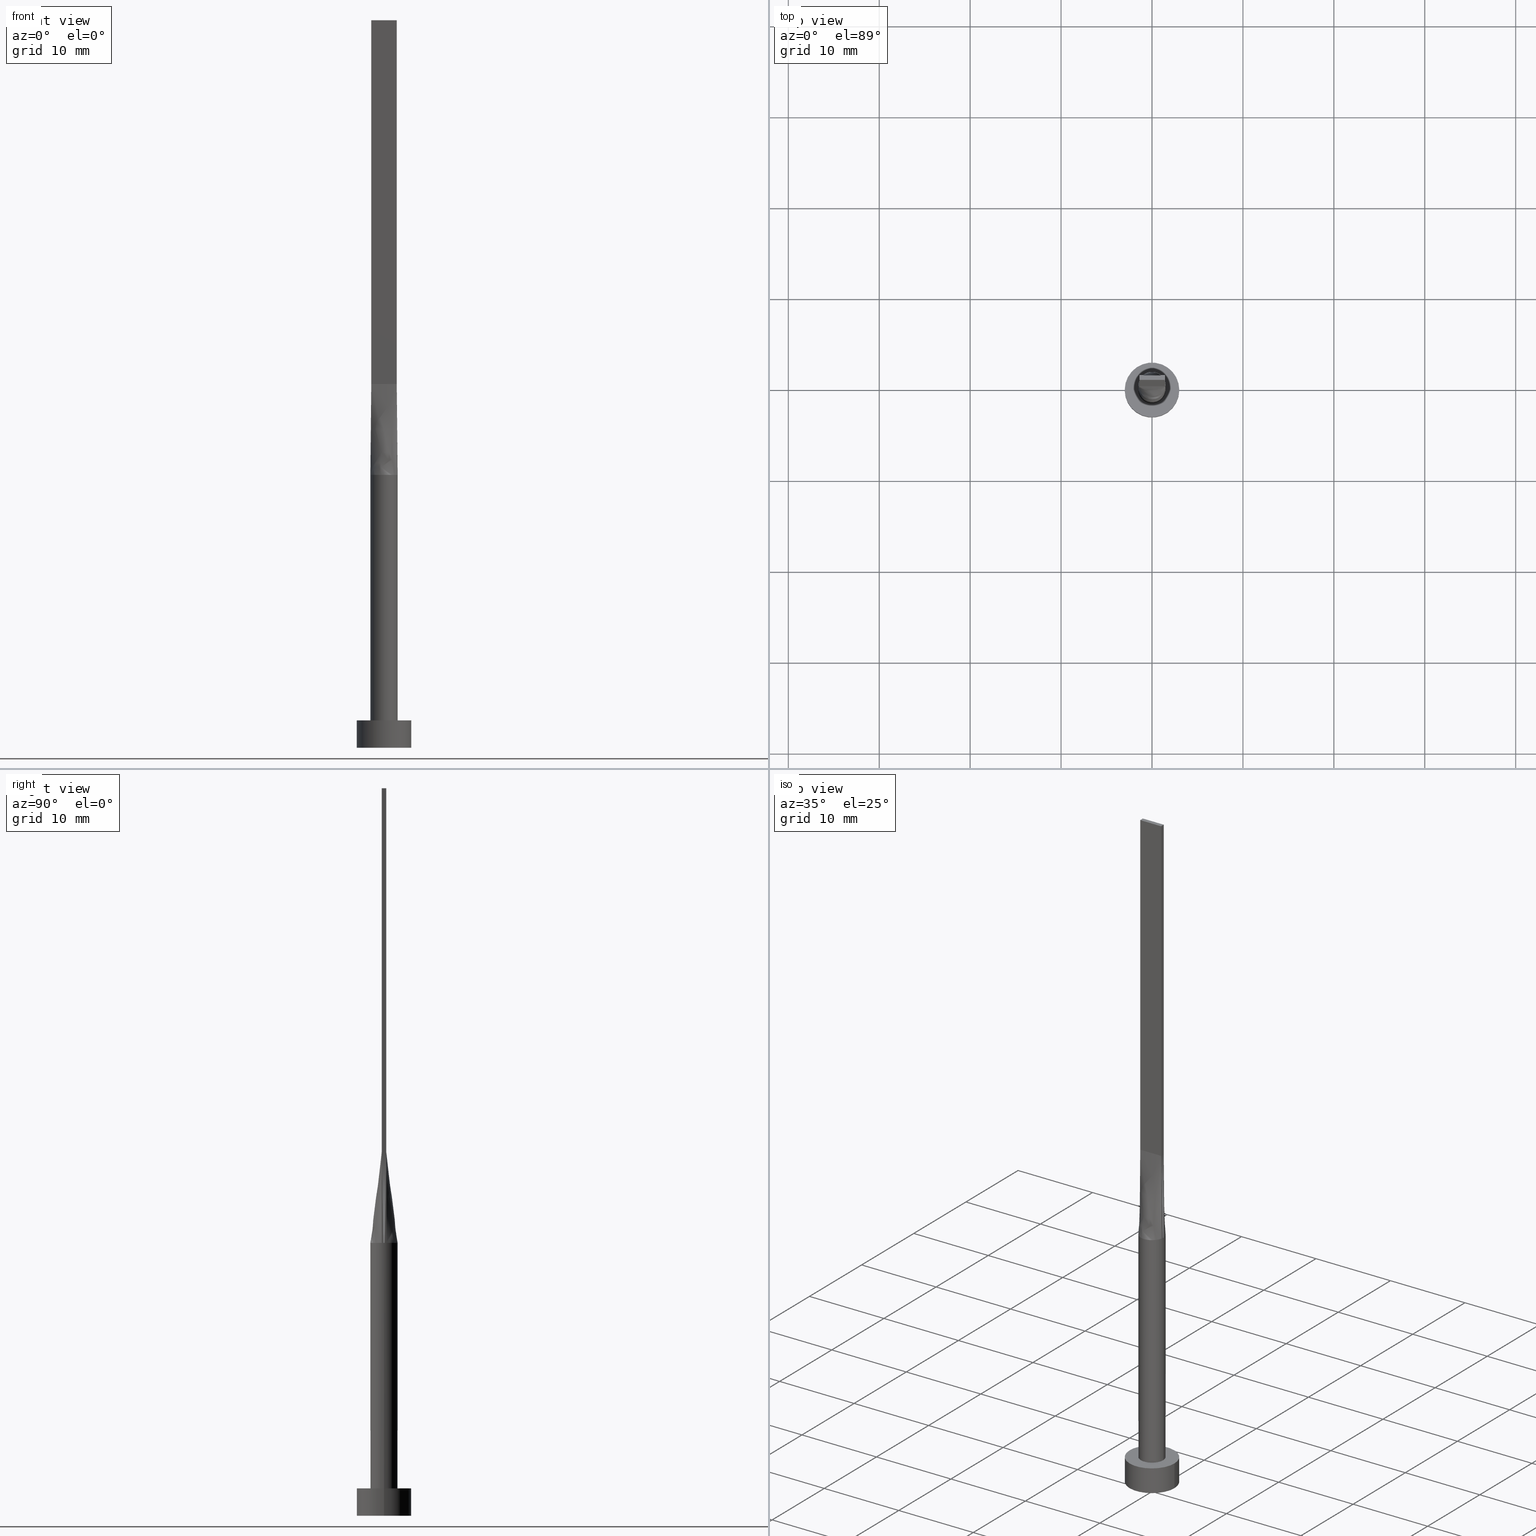
[diagram: canonical four-view strip — front | top / right | iso, engineering-drawing reading convention]
A machine part, canonical four-view strip (front | top / right | iso — engineering-drawing reading convention). The complete STEP part file that produces these views, byte-faithful:
ISO-10303-21;
HEADER;
FILE_DESCRIPTION (( 'STEP AP203' ),
    '1' );
FILE_NAME ('a864.STEP',
    '2026-02-12T09:01:34',
    ( '' ),
    ( '' ),
    'SwSTEP 2.0',
    'SolidWorks 2019',
    '' );
FILE_SCHEMA (( 'CONFIG_CONTROL_DESIGN' ));
ENDSEC;

DATA;
#1 = EDGE_LOOP ( 'NONE', ( #556, #74 ) ) ;
#2 = LINE ( 'NONE', #135, #396 ) ;
#3 = CARTESIAN_POINT ( 'NONE',  ( -0.1166666666666663910, 0.2500000000000002220, 39.99999999999999289 ) ) ;
#4 = CARTESIAN_POINT ( 'NONE',  ( -0.2093118330951414807, -1.500000000000000666, 30.00000000000000355 ) ) ;
#5 = DIRECTION ( 'NONE',  ( 1.000000000000000000, 0.000000000000000000, -0.000000000000000000 ) ) ;
#6 = CARTESIAN_POINT ( 'NONE',  ( -0.4178861784692550208, 1.454504042781961326, 30.00000000000000355 ) ) ;
#7 = CARTESIAN_POINT ( 'NONE',  ( -0.4666666666666662300, 0.2500000000000002220, 39.99999999999999289 ) ) ;
#8 = APPROVAL_PERSON_ORGANIZATION ( #536, #63, #30 ) ;
#9 = ORIENTED_EDGE ( 'NONE', *, *, #357, .T. ) ;
#10 = ORIENTED_EDGE ( 'NONE', *, *, #42, .T. ) ;
#11 = ORIENTED_EDGE ( 'NONE', *, *, #512, .F. ) ;
#12 = EDGE_LOOP ( 'NONE', ( #390, #106, #248, #557 ) ) ;
#13 = VECTOR ( 'NONE', #484, 1000.000000000000000 ) ;
#14 = ORIENTED_EDGE ( 'NONE', *, *, #417, .F. ) ;
#15 = EDGE_CURVE ( 'NONE', #156, #159, #186, .T. ) ;
#16 = CARTESIAN_POINT ( 'NONE',  ( -1.193588737715979731, -0.9257784320005619794, 30.00000000000000355 ) ) ;
#17 = PLANE ( 'NONE',  #224 ) ;
#18 = CYLINDRICAL_SURFACE ( 'NONE', #58, 1.500000000000000222 ) ;
#19 = CARTESIAN_POINT ( 'NONE',  ( -0.4666666666666677288, -0.2499999999999996669, 39.99999999999999289 ) ) ;
#20 = FACE_OUTER_BOUND ( 'NONE', #164, .T. ) ;
#21 = APPROVAL ( #486, 'NEUR�EN�' ) ;
#22 = LINE ( 'NONE', #518, #497 ) ;
#23 = VECTOR ( 'NONE', #240, 1000.000000000000000 ) ;
#24 = ORIENTED_EDGE ( 'NONE', *, *, #49, .F. ) ;
#25 = CARTESIAN_POINT ( 'NONE',  ( 1.476789766994309527, -0.2637122300648489515, 30.00000000000000000 ) ) ;
#26 = PLANE ( 'NONE',  #150 ) ;
#27 = CARTESIAN_POINT ( 'NONE',  ( -0.7852726932053994968, -1.293660568283136136, 30.00000000000000711 ) ) ;
#28 = CARTESIAN_POINT ( 'NONE',  ( 1.399999999999999911, -0.1666666666666664909, 39.99999999999999289 ) ) ;
#29 = CARTESIAN_POINT ( 'NONE',  ( 0.000000000000000000, 0.000000000000000000, 30.00000000000000000 ) ) ;
#30 = APPROVAL_ROLE ( '' ) ;
#31 = DIRECTION ( 'NONE',  ( 0.000000000000000000, 0.000000000000000000, 1.000000000000000000 ) ) ;
#32 = CIRCLE ( 'NONE', #375, 1.500000000000000222 ) ;
#33 = EDGE_CURVE ( 'NONE', #568, #59, #467, .T. ) ;
#34 = PERSON_AND_ORGANIZATION_ROLE ( 'creator' ) ;
#35 = EDGE_CURVE ( 'NONE', #153, #156, #526, .T. ) ;
#36 = DIRECTION ( 'NONE',  ( 0.000000000000000000, 0.000000000000000000, 1.000000000000000000 ) ) ;
#37 = CARTESIAN_POINT ( 'NONE',  ( -1.399999999999999911, 0.2500000000000002220, 40.00000000000000000 ) ) ;
#38 = CALENDAR_DATE ( 2026, 12, 2 ) ;
#39 = CARTESIAN_POINT ( 'NONE',  ( 0.000000000000000000, 0.000000000000000000, 3.000000000000000000 ) ) ;
#40 = DIRECTION ( 'NONE',  ( -1.000000000000000000, 0.000000000000000000, 0.000000000000000000 ) ) ;
#41 = ORIENTED_EDGE ( 'NONE', *, *, #46, .T. ) ;
#42 = EDGE_CURVE ( 'NONE', #307, #102, #297, .T. ) ;
#43 = PERSON_AND_ORGANIZATION ( #154, #195 ) ;
#44 = DIRECTION ( 'NONE',  ( 1.000000000000000000, 0.000000000000000000, 0.000000000000000000 ) ) ;
#45 = CARTESIAN_POINT ( 'NONE',  ( 0.4178861784692547432, 1.454504042781961770, 30.00000000000001421 ) ) ;
#46 = EDGE_CURVE ( 'NONE', #159, #465, #453, .T. ) ;
#47 = CARTESIAN_POINT ( 'NONE',  ( -0.2333333333333344750, -0.2499999999999996669, 39.99999999999999289 ) ) ;
#48 = PRODUCT_DEFINITION_FORMATION_WITH_SPECIFIED_SOURCE ( 'LIBOVOLN�', '', #214, .NOT_KNOWN. ) ;
#49 = EDGE_CURVE ( 'NONE', #548, #464, #433, .T. ) ;
#50 = CARTESIAN_POINT ( 'NONE',  ( -1.399999999999999911, 0.2500000000000002220, 40.00000000000000000 ) ) ;
#51 = CARTESIAN_POINT ( 'NONE',  ( 0.000000000000000000, 0.000000000000000000, 0.000000000000000000 ) ) ;
#52 = CARTESIAN_POINT ( 'NONE',  ( 0.7852726932053988307, 1.293660568283136358, 30.00000000000000711 ) ) ;
#53 = CARTESIAN_POINT ( 'NONE',  ( -0.7852726932053990527, 1.293660568283136136, 30.00000000000000355 ) ) ;
#54 = CARTESIAN_POINT ( 'NONE',  ( 1.416287091352355532, -0.5163978007200231701, 30.00000000000001066 ) ) ;
#55 = VERTEX_POINT ( 'NONE', #212 ) ;
#56 = ADVANCED_FACE ( 'NONE', ( #348 ), #208, .T. ) ;
#57 = CC_DESIGN_PERSON_AND_ORGANIZATION_ASSIGNMENT ( #448, #34, ( #70 ) ) ;
#58 = AXIS2_PLACEMENT_3D ( 'NONE', #434, #79, #266 ) ;
#59 = VERTEX_POINT ( 'NONE', #410 ) ;
#60 = APPLICATION_CONTEXT ( 'configuration controlled 3d designs of mechanical parts and assemblies' ) ;
#61 = ORIENTED_EDGE ( 'NONE', *, *, #355, .F. ) ;
#62 = VERTEX_POINT ( 'NONE', #329 ) ;
#63 = APPROVAL ( #444, 'NEUR�EN�' ) ;
#64 = ORIENTED_EDGE ( 'NONE', *, *, #216, .F. ) ;
#65 = CARTESIAN_POINT ( 'NONE',  ( 1.476641363262723106, -0.2636859577254868081, 30.00000000000000000 ) ) ;
#66 = VECTOR ( 'NONE', #178, 1000.000000000000000 ) ;
#67 = CARTESIAN_POINT ( 'NONE',  ( 0.000000000000000000, 0.000000000000000000, 3.000000000000000000 ) ) ;
#68 = CARTESIAN_POINT ( 'NONE',  ( 1.399999999999999911, -0.2499999999999997780, 40.00000000000000000 ) ) ;
#69 = CARTESIAN_POINT ( 'NONE',  ( 1.399999999999999911, 0.2500000000000002220, 80.00000000000000000 ) ) ;
#70 = PRODUCT_DEFINITION ( 'NEZN�M�', '', #48, #124 ) ;
#71 = DIRECTION ( 'NONE',  ( -0.007663904067361702183, -0.001368554297743126936, -0.9999696953576046043 ) ) ;
#72 = LINE ( 'NONE', #431, #237 ) ;
#73 = B_SPLINE_SURFACE_WITH_KNOTS ( 'NONE', 3, 1, ( 
 ( #65, #68 ),
 ( #517, #28 ),
 ( #111, #115 ),
 ( #213, #476 ),
 ( #121, #352 ),
 ( #298, #470 ) ),
 .UNSPECIFIED., .F., .F., .F.,
 ( 4, 2, 4 ),
 ( 2, 2 ),
 ( 0.000000000000000000, 0.5000000000000000000, 1.000000000000000000 ),
 ( 0.000000000000000000, 1.000000000000000000 ),
 .UNSPECIFIED. ) ;
#74 = ORIENTED_EDGE ( 'NONE', *, *, #417, .T. ) ;
#75 = DIRECTION ( 'NONE',  ( -0.007663904067361680499, 0.001368554297743197626, 0.9999696953576046043 ) ) ;
#76 = CIRCLE ( 'NONE', #222, 3.000000000000000444 ) ;
#77 = ORIENTED_EDGE ( 'NONE', *, *, #205, .F. ) ;
#78 = CARTESIAN_POINT ( 'NONE',  ( -1.492092537551969578, 0.1771593817057086351, 30.00000000000000000 ) ) ;
#79 = DIRECTION ( 'NONE',  ( -0.000000000000000000, -0.000000000000000000, -1.000000000000000000 ) ) ;
#80 = PERSON_AND_ORGANIZATION ( #154, #195 ) ;
#81 = LINE ( 'NONE', #575, #174 ) ;
#82 = EDGE_CURVE ( 'NONE', #384, #153, #158, .T. ) ;
#83 = DATE_AND_TIME ( #399, #463 ) ;
#84 = DIRECTION ( 'NONE',  ( 0.000000000000000000, 0.000000000000000000, 1.000000000000000000 ) ) ;
#85 = APPROVAL_ROLE ( '' ) ;
#86 = CARTESIAN_POINT ( 'NONE',  ( -1.399999999999999911, 0.2500000000000002220, 80.00000000000000000 ) ) ;
#87 = EDGE_CURVE ( 'NONE', #376, #469, #371, .T. ) ;
#88 = FACE_OUTER_BOUND ( 'NONE', #451, .T. ) ;
#89 = ORIENTED_EDGE ( 'NONE', *, *, #163, .T. ) ;
#90 = CALENDAR_DATE ( 2026, 12, 2 ) ;
#91 = LINE ( 'NONE', #280, #432 ) ;
#92 = CARTESIAN_POINT ( 'NONE',  ( -1.455009719257779111, 0.3848231641531745795, 30.00000000000000000 ) ) ;
#93 = CARTESIAN_POINT ( 'NONE',  ( 0.2093118330951404815, -1.500000000000000444, 29.99999999999999645 ) ) ;
#94 = CARTESIAN_POINT ( 'NONE',  ( 0.000000000000000000, 0.000000000000000000, 30.00000000000000000 ) ) ;
#95 = CARTESIAN_POINT ( 'NONE',  ( -1.476641363262723328, 0.2636859577254856424, 30.00000000000000000 ) ) ;
#96 = EDGE_CURVE ( 'NONE', #345, #550, #76, .T. ) ;
#97 = CARTESIAN_POINT ( 'NONE',  ( 1.455009719257778888, -0.3848231641531754121, 30.00000000000000355 ) ) ;
#98 = CARTESIAN_POINT ( 'NONE',  ( -1.285860877433235183, 0.7868275653575075301, 30.00000000000000000 ) ) ;
#99 = CARTESIAN_POINT ( 'NONE',  ( 0.2093118330951408979, 1.500000000000000666, 30.00000000000000355 ) ) ;
#100 = CARTESIAN_POINT ( 'NONE',  ( -1.476774769252511055, 0.2637095436881764510, 30.00000000000000000 ) ) ;
#101 = PRODUCT_RELATED_PRODUCT_CATEGORY ( 'detail', '', ( #214 ) ) ;
#102 = VERTEX_POINT ( 'NONE', #488 ) ;
#103 = EDGE_CURVE ( 'NONE', #548, #376, #317, .T. ) ;
#104 = AXIS2_PLACEMENT_3D ( 'NONE', #170, #350, #211 ) ;
#105 = LOCAL_TIME ( 10, 1, 34.00000000000000000, #271 ) ;
#106 = ORIENTED_EDGE ( 'NONE', *, *, #272, .F. ) ;
#107 = ADVANCED_FACE ( 'NONE', ( #140 ), #142, .T. ) ;
#108 = EDGE_LOOP ( 'NONE', ( #562, #508, #571, #290 ) ) ;
#109 = ORIENTED_EDGE ( 'NONE', *, *, #193, .F. ) ;
#110 = DIRECTION ( 'NONE',  ( 0.000000000000000000, 0.000000000000000000, 1.000000000000000000 ) ) ;
#111 = CARTESIAN_POINT ( 'NONE',  ( 1.499818124696592481, -0.08857969085285472000, 30.00000000000000000 ) ) ;
#112 = VECTOR ( 'NONE', #455, 999.9999999999998863 ) ;
#113 = DIRECTION ( 'NONE',  ( -0.000000000000000000, -0.000000000000000000, -1.000000000000000000 ) ) ;
#114 = CARTESIAN_POINT ( 'NONE',  ( -0.8166666666666674290, -0.2499999999999996669, 39.99999999999999289 ) ) ;
#115 = CARTESIAN_POINT ( 'NONE',  ( 1.399999999999999911, -0.08333333333333318993, 39.99999999999999289 ) ) ;
#116 = FACE_OUTER_BOUND ( 'NONE', #108, .T. ) ;
#117 = ORIENTED_EDGE ( 'NONE', *, *, #335, .F. ) ;
#118 = DIRECTION ( 'NONE',  ( 1.000000000000000000, 0.000000000000000000, 0.000000000000000000 ) ) ;
#119 = DIRECTION ( 'NONE',  ( 1.000000000000000000, 0.000000000000000000, 0.000000000000000000 ) ) ;
#120 = CARTESIAN_POINT ( 'NONE',  ( -1.285860877433235405, -0.7868275653575071971, 30.00000000000001066 ) ) ;
#121 = CARTESIAN_POINT ( 'NONE',  ( 1.492092537551969578, 0.1771593817057089126, 30.00000000000000000 ) ) ;
#122 = VECTOR ( 'NONE', #406, 1000.000000000000000 ) ;
#123 = CARTESIAN_POINT ( 'NONE',  ( 1.399999999999999911, 0.2500000000000002220, 80.00000000000000000 ) ) ;
#124 = DESIGN_CONTEXT ( 'detailed design', #60, 'design' ) ;
#125 = APPROVAL_DATE_TIME ( #127, #242 ) ;
#126 = DIRECTION ( 'NONE',  ( 0.000000000000000000, -0.000000000000000000, -1.000000000000000000 ) ) ;
#127 = DATE_AND_TIME ( #438, #514 ) ;
#128 = CARTESIAN_POINT ( 'NONE',  ( -1.476780214353118348, -0.2637106662004926605, 30.00000000000000000 ) ) ;
#129 = APPROVAL_DATE_TIME ( #268, #63 ) ;
#130 = DIRECTION ( 'NONE',  ( 1.000000000000000000, 0.000000000000000000, 0.000000000000000000 ) ) ;
#131 = CARTESIAN_POINT ( 'NONE',  ( -0.5833333333333328152, 0.2500000000000002220, 39.99999999999999289 ) ) ;
#132 = ADVANCED_FACE ( 'NONE', ( #88 ), #519, .T. ) ;
#133 = CARTESIAN_POINT ( 'NONE',  ( -1.283333333333333437, -0.2499999999999996669, 39.99999999999999289 ) ) ;
#134 = PERSON_AND_ORGANIZATION ( #154, #195 ) ;
#135 = CARTESIAN_POINT ( 'NONE',  ( -1.399999999999999911, 0.2500000000000002220, 80.00000000000000000 ) ) ;
#136 = CARTESIAN_POINT ( 'NONE',  ( 0.9436169880431070078, 1.179536671679307869, 30.00000000000000000 ) ) ;
#137 = ORIENTED_EDGE ( 'NONE', *, *, #15, .F. ) ;
#138 = CARTESIAN_POINT ( 'NONE',  ( -0.1166666666666678343, -0.2499999999999996669, 40.00000000000000000 ) ) ;
#139 = CARTESIAN_POINT ( 'NONE',  ( 0.000000000000000000, 0.000000000000000000, 0.000000000000000000 ) ) ;
#140 = FACE_OUTER_BOUND ( 'NONE', #287, .T. ) ;
#141 = CARTESIAN_POINT ( 'NONE',  ( 1.283333333333333437, -0.2499999999999997780, 39.99999999999999289 ) ) ;
#142 = CYLINDRICAL_SURFACE ( 'NONE', #236, 3.000000000000000444 ) ;
#143 = VECTOR ( 'NONE', #180, 1000.000000000000000 ) ;
#144 = CARTESIAN_POINT ( 'NONE',  ( 1.285860877433235405, 0.7868275653575075301, 30.00000000000000711 ) ) ;
#145 = CIRCLE ( 'NONE', #468, 3.000000000000000444 ) ;
#146 = CARTESIAN_POINT ( 'NONE',  ( 0.4666666666666673402, 0.2500000000000002220, 39.99999999999999289 ) ) ;
#147 = ADVANCED_FACE ( 'NONE', ( #183 ), #446, .F. ) ;
#148 = ORIENTED_EDGE ( 'NONE', *, *, #555, .T. ) ;
#149 = ORIENTED_EDGE ( 'NONE', *, *, #515, .T. ) ;
#150 = AXIS2_PLACEMENT_3D ( 'NONE', #527, #560, #126 ) ;
#151 = CIRCLE ( 'NONE', #250, 1.500000000000000222 ) ;
#152 = EDGE_LOOP ( 'NONE', ( #149, #249, #303, #89 ) ) ;
#153 = VERTEX_POINT ( 'NONE', #471 ) ;
#154 = PERSON ( 'NEUR�EN�', 'NEUR�EN�', 'NEUR�EN�', ('NEUR�EN�'), ('NEUR�EN�'), ('NEUR�EN�') ) ;
#155 = ADVANCED_FACE ( 'NONE', ( #207, #427 ), #215, .T. ) ;
#156 = VERTEX_POINT ( 'NONE', #301 ) ;
#157 = CARTESIAN_POINT ( 'NONE',  ( -3.000000000000000444, 0.000000000000000000, 0.000000000000000000 ) ) ;
#158 = B_SPLINE_CURVE_WITH_KNOTS ( 'NONE', 3,
 ( #283, #500, #545, #144, #326, #457, #52, #243, #99, #413, #6, #227, #414, #327, #98, #284, #92, #100 ),
 .UNSPECIFIED., .F., .F.,
 ( 4, 2, 2, 2, 2, 2, 2, 2, 4 ),
 ( 0.000000000000000000, 0.1249999999999999167, 0.2499999999999998335, 0.3749999999999998335, 0.4999999999999998890, 0.6249999999999998890, 0.7499999999999998890, 0.8750000000000000000, 1.000000000000000000 ),
 .UNSPECIFIED. ) ;
#159 = VERTEX_POINT ( 'NONE', #176 ) ;
#160 = CARTESIAN_POINT ( 'NONE',  ( -1.476641363262723328, -0.2636859577254855869, 30.00000000000000000 ) ) ;
#161 =( GEOMETRIC_REPRESENTATION_CONTEXT ( 3 ) GLOBAL_UNCERTAINTY_ASSIGNED_CONTEXT ( ( #559 ) ) GLOBAL_UNIT_ASSIGNED_CONTEXT ( ( #567, #293, #259 ) ) REPRESENTATION_CONTEXT ( 'NONE', 'WORKASPACE' ) );
#162 = DIRECTION ( 'NONE',  ( 0.000000000000000000, 0.000000000000000000, 1.000000000000000000 ) ) ;
#163 = EDGE_CURVE ( 'NONE', #258, #469, #392, .T. ) ;
#164 = EDGE_LOOP ( 'NONE', ( #505, #461, #24, #198, #61 ) ) ;
#165 = FACE_OUTER_BOUND ( 'NONE', #152, .T. ) ;
#166 = ADVANCED_FACE ( 'NONE', ( #165 ), #26, .F. ) ;
#167 = DIRECTION ( 'NONE',  ( 1.000000000000000000, 0.000000000000000000, 0.000000000000000000 ) ) ;
#168 = CARTESIAN_POINT ( 'NONE',  ( -1.399999999999999911, 0.2500000000000002220, 40.00000000000000000 ) ) ;
#169 = ORIENTED_EDGE ( 'NONE', *, *, #263, .F. ) ;
#170 = CARTESIAN_POINT ( 'NONE',  ( -1.399999999999999911, -0.2499999999999996392, 80.00000000000000000 ) ) ;
#171 = ADVANCED_FACE ( 'NONE', ( #569 ), #389, .F. ) ;
#172 = DIRECTION ( 'NONE',  ( 1.000000000000000000, 0.000000000000000000, -0.000000000000000000 ) ) ;
#173 = DIRECTION ( 'NONE',  ( -0.000000000000000000, -0.000000000000000000, -1.000000000000000000 ) ) ;
#174 = VECTOR ( 'NONE', #173, 1000.000000000000000 ) ;
#175 = APPROVAL_ROLE ( '' ) ;
#176 = CARTESIAN_POINT ( 'NONE',  ( -1.500000000000000222, 0.000000000000000000, 3.000000000000000000 ) ) ;
#177 = DATE_TIME_ROLE ( 'creation_date' ) ;
#178 = DIRECTION ( 'NONE',  ( -0.000000000000000000, -0.000000000000000000, -1.000000000000000000 ) ) ;
#179 = CARTESIAN_POINT ( 'NONE',  ( 0.8166666666666673180, 0.2500000000000002220, 39.99999999999999289 ) ) ;
#180 = DIRECTION ( 'NONE',  ( 1.000000000000000000, -5.808225924029488744E-17, 0.000000000000000000 ) ) ;
#181 = PERSON_AND_ORGANIZATION_ROLE ( 'design_owner' ) ;
#182 = DIRECTION ( 'NONE',  ( 0.000000000000000000, 0.000000000000000000, 1.000000000000000000 ) ) ;
#183 = FACE_OUTER_BOUND ( 'NONE', #331, .T. ) ;
#184 = VECTOR ( 'NONE', #257, 1000.000000000000000 ) ;
#185 = CC_DESIGN_APPROVAL ( #21, ( #351 ) ) ;
#186 = LINE ( 'NONE', #319, #122 ) ;
#187 = DIRECTION ( 'NONE',  ( 1.000000000000000000, 0.000000000000000000, 0.000000000000000000 ) ) ;
#188 = CARTESIAN_POINT ( 'NONE',  ( -0.9436169880431073409, 1.179536671679307647, 30.00000000000000000 ) ) ;
#189 = CARTESIAN_POINT ( 'NONE',  ( 0.2333333333333322268, -0.2499999999999996669, 39.99999999999999289 ) ) ;
#190 = CARTESIAN_POINT ( 'NONE',  ( -1.166666666666666519, 0.2500000000000002220, 39.99999999999999289 ) ) ;
#191 = CARTESIAN_POINT ( 'NONE',  ( 0.1166666666666655305, -0.2499999999999996669, 39.99999999999999289 ) ) ;
#192 = CARTESIAN_POINT ( 'NONE',  ( 1.416287091352355976, 0.5163978007200227260, 30.00000000000000000 ) ) ;
#193 = EDGE_CURVE ( 'NONE', #464, #568, #282, .T. ) ;
#194 = AXIS2_PLACEMENT_3D ( 'NONE', #474, #31, #309 ) ;
#195 = ORGANIZATION ( 'NEUR�EN�', 'NEUR�EN�', '' ) ;
#196 = EDGE_LOOP ( 'NONE', ( #245, #292, #109, #473, #551, #41 ) ) ;
#197 = ORIENTED_EDGE ( 'NONE', *, *, #82, .F. ) ;
#198 = ORIENTED_EDGE ( 'NONE', *, *, #302, .F. ) ;
#199 = ORIENTED_EDGE ( 'NONE', *, *, #335, .T. ) ;
#200 = APPROVAL_PERSON_ORGANIZATION ( #80, #242, #175 ) ;
#201 = ORIENTED_EDGE ( 'NONE', *, *, #355, .T. ) ;
#202 = ORIENTED_EDGE ( 'NONE', *, *, #515, .F. ) ;
#203 = CARTESIAN_POINT ( 'NONE',  ( -1.399999999999999911, -0.08333333333333345361, 39.99999999999999289 ) ) ;
#204 = EDGE_CURVE ( 'NONE', #102, #376, #347, .T. ) ;
#205 = EDGE_CURVE ( 'NONE', #59, #384, #32, .T. ) ;
#206 = ORIENTED_EDGE ( 'NONE', *, *, #216, .T. ) ;
#207 = FACE_BOUND ( 'NONE', #337, .T. ) ;
#208 = B_SPLINE_SURFACE_WITH_KNOTS ( 'NONE', 3, 1, ( 
 ( #533, #480 ),
 ( #425, #133 ),
 ( #435, #523 ),
 ( #120, #255 ),
 ( #16, #114 ),
 ( #428, #264 ),
 ( #27, #19 ),
 ( #210, #47 ),
 ( #4, #138 ),
 ( #93, #191 ),
 ( #370, #189 ),
 ( #323, #373 ),
 ( #496, #239 ),
 ( #285, #459 ),
 ( #279, #542 ),
 ( #54, #539 ),
 ( #97, #141 ),
 ( #493, #452 ) ),
 .UNSPECIFIED., .F., .F., .F.,
 ( 4, 2, 2, 2, 2, 2, 2, 2, 4 ),
 ( 2, 2 ),
 ( 0.000000000000000000, 0.1250000000000000000, 0.2500000000000000000, 0.3750000000000000000, 0.5000000000000000000, 0.6250000000000000000, 0.7500000000000000000, 0.8750000000000000000, 1.000000000000000000 ),
 ( 0.000000000000000000, 1.000000000000000000 ),
 .UNSPECIFIED. ) ;
#209 = AXIS2_PLACEMENT_3D ( 'NONE', #386, #305, #573 ) ;
#210 = CARTESIAN_POINT ( 'NONE',  ( -0.4178861784692555759, -1.454504042781961548, 30.00000000000000355 ) ) ;
#211 = DIRECTION ( 'NONE',  ( -1.000000000000000000, 5.808225924029488744E-17, 0.000000000000000000 ) ) ;
#212 = CARTESIAN_POINT ( 'NONE',  ( -3.000000000000000444, 0.000000000000000000, 3.000000000000000000 ) ) ;
#213 = CARTESIAN_POINT ( 'NONE',  ( 1.499818124696592481, 0.08857969085285435917, 30.00000000000000000 ) ) ;
#214 = PRODUCT ( 'a864', 'a864', '', ( #304 ) ) ;
#215 = PLANE ( 'NONE',  #209 ) ;
#216 = EDGE_CURVE ( 'NONE', #465, #159, #333, .T. ) ;
#217 = CARTESIAN_POINT ( 'NONE',  ( -1.438320681631361619, -0.2568429788627425991, 35.00000000000000000 ) ) ;
#218 = DIRECTION ( 'NONE',  ( 0.000000000000000000, 0.000000000000000000, 1.000000000000000000 ) ) ;
#219 = EDGE_CURVE ( 'NONE', #258, #336, #477, .T. ) ;
#220 = CARTESIAN_POINT ( 'NONE',  ( -1.399999999999999911, -0.2499999999999996392, 80.00000000000000000 ) ) ;
#221 = COORDINATED_UNIVERSAL_TIME_OFFSET ( 1, 0, .AHEAD. ) ;
#222 = AXIS2_PLACEMENT_3D ( 'NONE', #51, #401, #405 ) ;
#223 = DIRECTION ( 'NONE',  ( -1.000000000000000000, 0.000000000000000000, 0.000000000000000000 ) ) ;
#224 = AXIS2_PLACEMENT_3D ( 'NONE', #342, #172, #572 ) ;
#225 = PERSON_AND_ORGANIZATION_ROLE ( 'creator' ) ;
#226 = CARTESIAN_POINT ( 'NONE',  ( 3.000000000000000444, 3.673940397442060361E-16, 0.000000000000000000 ) ) ;
#227 = CARTESIAN_POINT ( 'NONE',  ( -0.7852726932053990527, 1.293660568283136136, 30.00000000000000355 ) ) ;
#228 = PERSON_AND_ORGANIZATION_ROLE ( 'classification_officer' ) ;
#229 = CC_DESIGN_PERSON_AND_ORGANIZATION_ASSIGNMENT ( #576, #228, ( #351 ) ) ;
#230 = CARTESIAN_POINT ( 'NONE',  ( 1.399999999999999911, -0.2499999999999997780, 40.00000000000000000 ) ) ;
#231 = CARTESIAN_POINT ( 'NONE',  ( 1.283333333333333659, 0.2500000000000002220, 40.00000000000000000 ) ) ;
#232 = ORIENTED_EDGE ( 'NONE', *, *, #272, .T. ) ;
#233 = APPROVAL_DATE_TIME ( #403, #21 ) ;
#234 = CARTESIAN_POINT ( 'NONE',  ( -1.438320681631361619, 0.2568429788627429322, 35.00000000000000000 ) ) ;
#235 = CARTESIAN_POINT ( 'NONE',  ( -0.2333333333333329485, 0.2500000000000002220, 39.99999999999999289 ) ) ;
#236 = AXIS2_PLACEMENT_3D ( 'NONE', #278, #581, #40 ) ;
#237 = VECTOR ( 'NONE', #75, 999.9999999999998863 ) ;
#238 = VECTOR ( 'NONE', #540, 1000.000000000000000 ) ;
#239 = CARTESIAN_POINT ( 'NONE',  ( 0.5833333333333323711, -0.2499999999999996669, 39.99999999999999289 ) ) ;
#240 = DIRECTION ( 'NONE',  ( -1.000000000000000000, -0.000000000000000000, -0.000000000000000000 ) ) ;
#241 = CARTESIAN_POINT ( 'NONE',  ( 1.455009719257779111, 0.3848231641531748570, 30.00000000000000355 ) ) ;
#242 = APPROVAL ( #397, 'NEUR�EN�' ) ;
#243 = CARTESIAN_POINT ( 'NONE',  ( 0.4178861784692547432, 1.454504042781961770, 30.00000000000001421 ) ) ;
#244 = CARTESIAN_POINT ( 'NONE',  ( -1.193588737715979731, 0.9257784320005616463, 29.99999999999999645 ) ) ;
#245 = ORIENTED_EDGE ( 'NONE', *, *, #501, .F. ) ;
#246 = CC_DESIGN_PERSON_AND_ORGANIZATION_ASSIGNMENT ( #43, #311, ( #48 ) ) ;
#247 = ORIENTED_EDGE ( 'NONE', *, *, #372, .F. ) ;
#248 = ORIENTED_EDGE ( 'NONE', *, *, #357, .F. ) ;
#249 = ORIENTED_EDGE ( 'NONE', *, *, #402, .F. ) ;
#250 = AXIS2_PLACEMENT_3D ( 'NONE', #277, #84, #130 ) ;
#251 = ORIENTED_EDGE ( 'NONE', *, *, #49, .T. ) ;
#252 = DIRECTION ( 'NONE',  ( 0.000000000000000000, 0.000000000000000000, 1.000000000000000000 ) ) ;
#253 = CARTESIAN_POINT ( 'NONE',  ( -1.476641363262723328, 0.2636859577254859754, 30.00000000000000000 ) ) ;
#254 = LINE ( 'NONE', #537, #66 ) ;
#255 = CARTESIAN_POINT ( 'NONE',  ( -0.9333333333333340143, -0.2499999999999996669, 39.99999999999999289 ) ) ;
#256 = CARTESIAN_POINT ( 'NONE',  ( 0.000000000000000000, 0.000000000000000000, 3.000000000000000000 ) ) ;
#257 = DIRECTION ( 'NONE',  ( -0.000000000000000000, -0.000000000000000000, -1.000000000000000000 ) ) ;
#258 = VERTEX_POINT ( 'NONE', #123 ) ;
#259 =( NAMED_UNIT ( * ) SI_UNIT ( $, .STERADIAN. ) SOLID_ANGLE_UNIT ( ) );
#260 = CC_DESIGN_PERSON_AND_ORGANIZATION_ASSIGNMENT ( #314, #225, ( #48 ) ) ;
#261 = AXIS2_PLACEMENT_3D ( 'NONE', #256, #218, #558 ) ;
#262 = CARTESIAN_POINT ( 'NONE',  ( 0.000000000000000000, 0.000000000000000000, 3.000000000000000000 ) ) ;
#263 = EDGE_CURVE ( 'NONE', #568, #376, #72, .T. ) ;
#264 = CARTESIAN_POINT ( 'NONE',  ( -0.5833333333333343695, -0.2499999999999996669, 39.99999999999999289 ) ) ;
#265 = CARTESIAN_POINT ( 'NONE',  ( 1.399999999999999911, -0.2499999999999997780, 80.00000000000000000 ) ) ;
#266 = DIRECTION ( 'NONE',  ( -1.000000000000000000, 0.000000000000000000, 0.000000000000000000 ) ) ;
#267 = PLANE ( 'NONE',  #479 ) ;
#268 = DATE_AND_TIME ( #90, #289 ) ;
#269 = DIRECTION ( 'NONE',  ( 1.000000000000000000, 0.000000000000000000, -0.000000000000000000 ) ) ;
#270 = CC_DESIGN_PERSON_AND_ORGANIZATION_ASSIGNMENT ( #134, #181, ( #214 ) ) ;
#271 = COORDINATED_UNIVERSAL_TIME_OFFSET ( 1, 0, .AHEAD. ) ;
#272 = EDGE_CURVE ( 'NONE', #307, #548, #81, .T. ) ;
#273 = DIRECTION ( 'NONE',  ( -1.000000000000000000, 0.000000000000000000, 0.000000000000000000 ) ) ;
#274 = CARTESIAN_POINT ( 'NONE',  ( 1.285860877433235405, 0.7868275653575075301, 30.00000000000000711 ) ) ;
#275 = ORIENTED_EDGE ( 'NONE', *, *, #372, .T. ) ;
#276 = SHAPE_DEFINITION_REPRESENTATION ( #344, #339 ) ;
#277 = CARTESIAN_POINT ( 'NONE',  ( 0.000000000000000000, 0.000000000000000000, 30.00000000000000000 ) ) ;
#278 = CARTESIAN_POINT ( 'NONE',  ( 0.000000000000000000, 0.000000000000000000, 3.000000000000000000 ) ) ;
#279 = CARTESIAN_POINT ( 'NONE',  ( 1.285860877433234961, -0.7868275653575079742, 30.00000000000000355 ) ) ;
#280 = CARTESIAN_POINT ( 'NONE',  ( 1.438320681631361619, 0.2568429788627433208, 35.00000000000000000 ) ) ;
#281 = DIRECTION ( 'NONE',  ( 0.000000000000000000, 0.000000000000000000, 1.000000000000000000 ) ) ;
#282 = CIRCLE ( 'NONE', #294, 1.500000000000000222 ) ;
#283 = CARTESIAN_POINT ( 'NONE',  ( 1.476765312825354837, 0.2637079867918904474, 30.00000000000000000 ) ) ;
#284 = CARTESIAN_POINT ( 'NONE',  ( -1.416287091352355976, 0.5163978007200225040, 30.00000000000001066 ) ) ;
#285 = CARTESIAN_POINT ( 'NONE',  ( 1.193588737715979509, -0.9257784320005624235, 29.99999999999999645 ) ) ;
#286 = ADVANCED_FACE ( 'NONE', ( #481 ), #356, .T. ) ;
#287 = EDGE_LOOP ( 'NONE', ( #117, #377, #275, #422 ) ) ;
#288 = EDGE_LOOP ( 'NONE', ( #77, #460, #206, #137, #489, #197 ) ) ;
#289 = LOCAL_TIME ( 10, 1, 34.00000000000000000, #530 ) ;
#290 = ORIENTED_EDGE ( 'NONE', *, *, #204, .T. ) ;
#291 = ORIENTED_EDGE ( 'NONE', *, *, #103, .T. ) ;
#292 = ORIENTED_EDGE ( 'NONE', *, *, #33, .F. ) ;
#293 =( NAMED_UNIT ( * ) PLANE_ANGLE_UNIT ( ) SI_UNIT ( $, .RADIAN. ) );
#294 = AXIS2_PLACEMENT_3D ( 'NONE', #29, #395, #310 ) ;
#295 = AXIS2_PLACEMENT_3D ( 'NONE', #346, #521, #118 ) ;
#296 = ADVANCED_FACE ( 'NONE', ( #299 ), #18, .T. ) ;
#297 = LINE ( 'NONE', #300, #143 ) ;
#298 = CARTESIAN_POINT ( 'NONE',  ( 1.476641363262723328, 0.2636859577254864750, 30.00000000000000000 ) ) ;
#299 = FACE_OUTER_BOUND ( 'NONE', #288, .T. ) ;
#300 = CARTESIAN_POINT ( 'NONE',  ( -1.399999999999999911, -0.2499999999999996392, 80.00000000000000000 ) ) ;
#301 = CARTESIAN_POINT ( 'NONE',  ( -1.499909062348296462, -1.026848616785427865E-15, 30.00000000000000000 ) ) ;
#302 = EDGE_CURVE ( 'NONE', #552, #548, #22, .T. ) ;
#303 = ORIENTED_EDGE ( 'NONE', *, *, #219, .F. ) ;
#304 = MECHANICAL_CONTEXT ( 'NONE', #424, 'mechanical' ) ;
#305 = DIRECTION ( 'NONE',  ( 0.000000000000000000, 0.000000000000000000, 1.000000000000000000 ) ) ;
#306 = APPROVAL_PERSON_ORGANIZATION ( #483, #21, #85 ) ;
#307 = VERTEX_POINT ( 'NONE', #220 ) ;
#308 = CIRCLE ( 'NONE', #261, 3.000000000000000444 ) ;
#309 = DIRECTION ( 'NONE',  ( 1.000000000000000000, 0.000000000000000000, 0.000000000000000000 ) ) ;
#310 = DIRECTION ( 'NONE',  ( 1.000000000000000000, 0.000000000000000000, 0.000000000000000000 ) ) ;
#311 = PERSON_AND_ORGANIZATION_ROLE ( 'design_supplier' ) ;
#312 = CARTESIAN_POINT ( 'NONE',  ( 1.399999999999999911, 0.2500000000000002220, 40.00000000000000000 ) ) ;
#313 = ADVANCED_FACE ( 'NONE', ( #116 ), #267, .F. ) ;
#314 = PERSON_AND_ORGANIZATION ( #154, #195 ) ;
#315 = AXIS2_PLACEMENT_3D ( 'NONE', #341, #475, #447 ) ;
#316 = DIRECTION ( 'NONE',  ( -0.000000000000000000, -0.000000000000000000, -1.000000000000000000 ) ) ;
#317 = LINE ( 'NONE', #364, #561 ) ;
#318 = CC_DESIGN_APPROVAL ( #242, ( #70 ) ) ;
#319 = CARTESIAN_POINT ( 'NONE',  ( -1.500000000000000222, 0.000000000000000000, 30.00000000000000000 ) ) ;
#320 = CALENDAR_DATE ( 2026, 12, 2 ) ;
#321 = DIRECTION ( 'NONE',  ( -0.000000000000000000, -0.000000000000000000, -1.000000000000000000 ) ) ;
#322 = DIRECTION ( 'NONE',  ( -0.000000000000000000, 1.000000000000000000, -0.000000000000000000 ) ) ;
#323 = CARTESIAN_POINT ( 'NONE',  ( 0.7852726932053983866, -1.293660568283137247, 30.00000000000000355 ) ) ;
#324 = LINE ( 'NONE', #50, #23 ) ;
#325 = CARTESIAN_POINT ( 'NONE',  ( 1.193588737715979509, 0.9257784320005622014, 30.00000000000000355 ) ) ;
#326 = CARTESIAN_POINT ( 'NONE',  ( 1.193588737715979509, 0.9257784320005622014, 30.00000000000000355 ) ) ;
#327 = CARTESIAN_POINT ( 'NONE',  ( -1.193588737715979731, 0.9257784320005616463, 29.99999999999999645 ) ) ;
#328 = AXIS2_PLACEMENT_3D ( 'NONE', #94, #321, #273 ) ;
#329 = CARTESIAN_POINT ( 'NONE',  ( 3.000000000000000444, 3.673940397442060361E-16, 3.000000000000000000 ) ) ;
#330 = CARTESIAN_POINT ( 'NONE',  ( 0.1166666666666669461, 0.2500000000000002220, 39.99999999999999289 ) ) ;
#331 = EDGE_LOOP ( 'NONE', ( #11, #421 ) ) ;
#332 = ORIENTED_EDGE ( 'NONE', *, *, #193, .T. ) ;
#333 = CIRCLE ( 'NONE', #194, 1.500000000000000222 ) ;
#334 = EDGE_LOOP ( 'NONE', ( #14, #199, #504, #247 ) ) ;
#335 = EDGE_CURVE ( 'NONE', #62, #345, #254, .T. ) ;
#336 = VERTEX_POINT ( 'NONE', #86 ) ;
#337 = EDGE_LOOP ( 'NONE', ( #378, #64 ) ) ;
#338 = LINE ( 'NONE', #265, #454 ) ;
#339 = ADVANCED_BREP_SHAPE_REPRESENTATION ( 'a864', ( #543, #295 ), #161 ) ;
#340 = LOCAL_TIME ( 10, 1, 34.00000000000000000, #354 ) ;
#341 = CARTESIAN_POINT ( 'NONE',  ( 0.000000000000000000, 0.000000000000000000, 30.00000000000000000 ) ) ;
#342 = CARTESIAN_POINT ( 'NONE',  ( -1.399999999999999911, 0.2500000000000002220, 80.00000000000000000 ) ) ;
#343 = DIRECTION ( 'NONE',  ( -1.000000000000000000, 0.000000000000000000, 0.000000000000000000 ) ) ;
#344 = PRODUCT_DEFINITION_SHAPE ( 'NONE', 'NONE',  #70 ) ;
#345 = VERTEX_POINT ( 'NONE', #226 ) ;
#346 = CARTESIAN_POINT ( 'NONE',  ( 0.000000000000000000, 0.000000000000000000, 0.000000000000000000 ) ) ;
#347 = LINE ( 'NONE', #353, #184 ) ;
#348 = FACE_OUTER_BOUND ( 'NONE', #367, .T. ) ;
#349 = CARTESIAN_POINT ( 'NONE',  ( -1.399999999999999911, -0.2499999999999996392, 40.00000000000000000 ) ) ;
#350 = DIRECTION ( 'NONE',  ( 5.808225924029488744E-17, 1.000000000000000000, -0.000000000000000000 ) ) ;
#351 = SECURITY_CLASSIFICATION ( '', '', #362 ) ;
#352 = CARTESIAN_POINT ( 'NONE',  ( 1.399999999999999911, 0.1666666666666668239, 39.99999999999999289 ) ) ;
#353 = CARTESIAN_POINT ( 'NONE',  ( 1.399999999999999911, -0.2499999999999997780, 80.00000000000000000 ) ) ;
#354 = COORDINATED_UNIVERSAL_TIME_OFFSET ( 1, 0, .AHEAD. ) ;
#355 = EDGE_CURVE ( 'NONE', #153, #552, #491, .T. ) ;
#356 = CYLINDRICAL_SURFACE ( 'NONE', #416, 3.000000000000000444 ) ;
#357 = EDGE_CURVE ( 'NONE', #336, #307, #2, .T. ) ;
#358 = DATE_AND_TIME ( #320, #340 ) ;
#359 = DIRECTION ( 'NONE',  ( 0.000000000000000000, -1.000000000000000000, 0.000000000000000000 ) ) ;
#360 = CARTESIAN_POINT ( 'NONE',  ( 0.2093118330951408979, 1.500000000000000666, 30.00000000000000355 ) ) ;
#361 = DIRECTION ( 'NONE',  ( 1.000000000000000000, 0.000000000000000000, 0.000000000000000000 ) ) ;
#362 = SECURITY_CLASSIFICATION_LEVEL ( 'unclassified' ) ;
#363 = CYLINDRICAL_SURFACE ( 'NONE', #328, 1.500000000000000222 ) ;
#364 = CARTESIAN_POINT ( 'NONE',  ( -1.399999999999999911, -0.2499999999999996392, 40.00000000000000000 ) ) ;
#365 = CC_DESIGN_APPROVAL ( #63, ( #48 ) ) ;
#366 = CC_DESIGN_DATE_AND_TIME_ASSIGNMENT ( #83, #177, ( #70 ) ) ;
#367 = EDGE_LOOP ( 'NONE', ( #332, #466, #509, #251 ) ) ;
#368 = FACE_OUTER_BOUND ( 'NONE', #196, .T. ) ;
#369 = CARTESIAN_POINT ( 'NONE',  ( -1.285860877433235183, 0.7868275653575075301, 30.00000000000000000 ) ) ;
#370 = CARTESIAN_POINT ( 'NONE',  ( 0.4178861784692542991, -1.454504042781961548, 30.00000000000000355 ) ) ;
#371 = LINE ( 'NONE', #578, #506 ) ;
#372 = EDGE_CURVE ( 'NONE', #55, #550, #408, .T. ) ;
#373 = CARTESIAN_POINT ( 'NONE',  ( 0.4666666666666656194, -0.2499999999999996669, 39.99999999999999289 ) ) ;
#374 = CARTESIAN_POINT ( 'NONE',  ( -0.8166666666666664298, 0.2500000000000002220, 39.99999999999999289 ) ) ;
#375 = AXIS2_PLACEMENT_3D ( 'NONE', #482, #162, #119 ) ;
#376 = VERTEX_POINT ( 'NONE', #230 ) ;
#377 = ORIENTED_EDGE ( 'NONE', *, *, #549, .F. ) ;
#378 = ORIENTED_EDGE ( 'NONE', *, *, #46, .F. ) ;
#379 = ADVANCED_FACE ( 'NONE', ( #529 ), #579, .T. ) ;
#380 = VECTOR ( 'NONE', #316, 1000.000000000000000 ) ;
#381 = EDGE_LOOP ( 'NONE', ( #291, #510, #382, #232 ) ) ;
#382 = ORIENTED_EDGE ( 'NONE', *, *, #42, .F. ) ;
#383 = CARTESIAN_POINT ( 'NONE',  ( -1.399999999999999911, 0.2500000000000002220, 40.00000000000000000 ) ) ;
#384 = VERTEX_POINT ( 'NONE', #404 ) ;
#385 = APPLICATION_PROTOCOL_DEFINITION ( 'international standard', 'config_control_design', 1994, #424 ) ;
#386 = CARTESIAN_POINT ( 'NONE',  ( 0.000000000000000000, 0.000000000000000000, 3.000000000000000000 ) ) ;
#387 = ORIENTED_EDGE ( 'NONE', *, *, #499, .T. ) ;
#388 = CARTESIAN_POINT ( 'NONE',  ( -1.399999999999999911, 0.1666666666666665741, 39.99999999999999289 ) ) ;
#389 = PLANE ( 'NONE',  #104 ) ;
#390 = ORIENTED_EDGE ( 'NONE', *, *, #302, .T. ) ;
#391 = FACE_OUTER_BOUND ( 'NONE', #12, .T. ) ;
#392 = LINE ( 'NONE', #564, #546 ) ;
#393 = EDGE_LOOP ( 'NONE', ( #503, #9, #10, #148 ) ) ;
#394 = CARTESIAN_POINT ( 'NONE',  ( -1.499818124696592481, -0.08857969085285403998, 30.00000000000000000 ) ) ;
#395 = DIRECTION ( 'NONE',  ( 0.000000000000000000, 0.000000000000000000, 1.000000000000000000 ) ) ;
#396 = VECTOR ( 'NONE', #359, 1000.000000000000000 ) ;
#397 = APPROVAL_STATUS ( 'not_yet_approved' ) ;
#398 = DIRECTION ( 'NONE',  ( 0.000000000000000000, 0.000000000000000000, 1.000000000000000000 ) ) ;
#399 = CALENDAR_DATE ( 2026, 12, 2 ) ;
#400 = CARTESIAN_POINT ( 'NONE',  ( -3.000000000000000444, 0.000000000000000000, 3.000000000000000000 ) ) ;
#401 = DIRECTION ( 'NONE',  ( 0.000000000000000000, 0.000000000000000000, 1.000000000000000000 ) ) ;
#402 = EDGE_CURVE ( 'NONE', #336, #552, #577, .T. ) ;
#403 = DATE_AND_TIME ( #38, #105 ) ;
#404 = CARTESIAN_POINT ( 'NONE',  ( 1.476765312825354837, 0.2637079867918904474, 30.00000000000000000 ) ) ;
#405 = DIRECTION ( 'NONE',  ( 1.000000000000000000, 0.000000000000000000, 0.000000000000000000 ) ) ;
#406 = DIRECTION ( 'NONE',  ( -0.000000000000000000, -0.000000000000000000, -1.000000000000000000 ) ) ;
#407 = EDGE_CURVE ( 'NONE', #156, #464, #151, .T. ) ;
#408 = LINE ( 'NONE', #400, #238 ) ;
#409 = CARTESIAN_POINT ( 'NONE',  ( 0.2333333333333337534, 0.2500000000000002220, 39.99999999999999289 ) ) ;
#410 = CARTESIAN_POINT ( 'NONE',  ( 1.499909062348296462, 3.515891419768138559E-16, 30.00000000000000000 ) ) ;
#411 = CARTESIAN_POINT ( 'NONE',  ( 0.000000000000000000, 0.000000000000000000, 80.00000000000000000 ) ) ;
#412 = CARTESIAN_POINT ( 'NONE',  ( 1.166666666666666963, 0.2500000000000002220, 40.00000000000000000 ) ) ;
#413 = CARTESIAN_POINT ( 'NONE',  ( -0.2093118330951410921, 1.500000000000000222, 30.00000000000000000 ) ) ;
#414 = CARTESIAN_POINT ( 'NONE',  ( -0.9436169880431073409, 1.179536671679307647, 30.00000000000000000 ) ) ;
#415 = ORIENTED_EDGE ( 'NONE', *, *, #87, .F. ) ;
#416 = AXIS2_PLACEMENT_3D ( 'NONE', #262, #113, #343 ) ;
#417 = EDGE_CURVE ( 'NONE', #62, #55, #535, .T. ) ;
#418 = ORIENTED_EDGE ( 'NONE', *, *, #499, .F. ) ;
#419 = ORIENTED_EDGE ( 'NONE', *, *, #205, .T. ) ;
#420 = ADVANCED_FACE ( 'NONE', ( #368 ), #363, .T. ) ;
#421 = ORIENTED_EDGE ( 'NONE', *, *, #96, .F. ) ;
#422 = ORIENTED_EDGE ( 'NONE', *, *, #512, .T. ) ;
#423 = DIRECTION ( 'NONE',  ( 0.000000000000000000, 1.000000000000000000, 0.000000000000000000 ) ) ;
#424 = APPLICATION_CONTEXT ( 'configuration controlled 3d designs of mechanical parts and assemblies' ) ;
#425 = CARTESIAN_POINT ( 'NONE',  ( -1.455009719257779111, -0.3848231641531742464, 30.00000000000000355 ) ) ;
#426 = CARTESIAN_POINT ( 'NONE',  ( -1.399999999999999911, 0.08333333333333312054, 39.99999999999999289 ) ) ;
#427 = FACE_OUTER_BOUND ( 'NONE', #1, .T. ) ;
#428 = CARTESIAN_POINT ( 'NONE',  ( -0.9436169880431074519, -1.179536671679307647, 29.99999999999999645 ) ) ;
#429 = CARTESIAN_POINT ( 'NONE',  ( -1.399999999999999911, -0.1666666666666665741, 39.99999999999999289 ) ) ;
#430 = B_SPLINE_SURFACE_WITH_KNOTS ( 'NONE', 3, 1, ( 
 ( #253, #383 ),
 ( #78, #388 ),
 ( #563, #426 ),
 ( #394, #203 ),
 ( #524, #429 ),
 ( #160, #511 ) ),
 .UNSPECIFIED., .F., .F., .F.,
 ( 4, 2, 4 ),
 ( 2, 2 ),
 ( 0.000000000000000000, 0.5000000000000000000, 1.000000000000000000 ),
 ( 0.000000000000000000, 1.000000000000000000 ),
 .UNSPECIFIED. ) ;
#431 = CARTESIAN_POINT ( 'NONE',  ( 1.438320681631361397, -0.2568429788627430987, 35.00000000000000000 ) ) ;
#432 = VECTOR ( 'NONE', #445, 999.9999999999998863 ) ;
#433 = LINE ( 'NONE', #217, #462 ) ;
#434 = CARTESIAN_POINT ( 'NONE',  ( 0.000000000000000000, 0.000000000000000000, 30.00000000000000000 ) ) ;
#435 = CARTESIAN_POINT ( 'NONE',  ( -1.416287091352355532, -0.5163978007200222820, 30.00000000000000000 ) ) ;
#436 = FACE_OUTER_BOUND ( 'NONE', #554, .T. ) ;
#437 = DIRECTION ( 'NONE',  ( 0.000000000000000000, -1.000000000000000000, 0.000000000000000000 ) ) ;
#438 = CALENDAR_DATE ( 2026, 12, 2 ) ;
#439 = CARTESIAN_POINT ( 'NONE',  ( 1.399999999999999911, -0.2499999999999997780, 80.00000000000000000 ) ) ;
#440 = AXIS2_PLACEMENT_3D ( 'NONE', #67, #252, #361 ) ;
#441 = COORDINATED_UNIVERSAL_TIME_OFFSET ( 1, 0, .AHEAD. ) ;
#442 = LINE ( 'NONE', #449, #380 ) ;
#443 = CARTESIAN_POINT ( 'NONE',  ( -1.455009719257779111, 0.3848231641531745795, 30.00000000000000000 ) ) ;
#444 = APPROVAL_STATUS ( 'not_yet_approved' ) ;
#445 = DIRECTION ( 'NONE',  ( -0.007663904067361702183, -0.001368554297743154041, 0.9999696953576046043 ) ) ;
#446 = PLANE ( 'NONE',  #534 ) ;
#447 = DIRECTION ( 'NONE',  ( 1.000000000000000000, -7.105427357601001859E-15, 0.000000000000000000 ) ) ;
#448 = PERSON_AND_ORGANIZATION ( #154, #195 ) ;
#449 = CARTESIAN_POINT ( 'NONE',  ( 1.500000000000000222, 1.836970198721030181E-16, 30.00000000000000000 ) ) ;
#450 = CARTESIAN_POINT ( 'NONE',  ( 0.9333333333333339032, 0.2500000000000002220, 39.99999999999999289 ) ) ;
#451 = EDGE_LOOP ( 'NONE', ( #516, #201, #202, #418 ) ) ;
#452 = CARTESIAN_POINT ( 'NONE',  ( 1.399999999999999911, -0.2499999999999997780, 40.00000000000000000 ) ) ;
#453 = CIRCLE ( 'NONE', #440, 1.500000000000000222 ) ;
#454 = VECTOR ( 'NONE', #423, 1000.000000000000000 ) ;
#455 = DIRECTION ( 'NONE',  ( 0.007663904067361702183, -0.001368554297743072943, 0.9999696953576046043 ) ) ;
#456 = CARTESIAN_POINT ( 'NONE',  ( 0.5833333333333339255, 0.2500000000000002220, 39.99999999999999289 ) ) ;
#457 = CARTESIAN_POINT ( 'NONE',  ( 0.9436169880431070078, 1.179536671679307869, 30.00000000000000000 ) ) ;
#458 = CARTESIAN_POINT ( 'NONE',  ( -0.2093118330951410921, 1.500000000000000222, 30.00000000000000000 ) ) ;
#459 = CARTESIAN_POINT ( 'NONE',  ( 0.8166666666666659857, -0.2499999999999996669, 39.99999999999999289 ) ) ;
#460 = ORIENTED_EDGE ( 'NONE', *, *, #501, .T. ) ;
#461 = ORIENTED_EDGE ( 'NONE', *, *, #407, .T. ) ;
#462 = VECTOR ( 'NONE', #71, 999.9999999999998863 ) ;
#463 = LOCAL_TIME ( 10, 1, 34.00000000000000000, #441 ) ;
#464 = VERTEX_POINT ( 'NONE', #128 ) ;
#465 = VERTEX_POINT ( 'NONE', #487 ) ;
#466 = ORIENTED_EDGE ( 'NONE', *, *, #263, .T. ) ;
#467 = CIRCLE ( 'NONE', #315, 1.500000000000000222 ) ;
#468 = AXIS2_PLACEMENT_3D ( 'NONE', #139, #494, #44 ) ;
#469 = VERTEX_POINT ( 'NONE', #312 ) ;
#470 = CARTESIAN_POINT ( 'NONE',  ( 1.399999999999999911, 0.2500000000000002220, 40.00000000000000000 ) ) ;
#471 = CARTESIAN_POINT ( 'NONE',  ( -1.476774769252511055, 0.2637095436881764510, 30.00000000000000000 ) ) ;
#472 = CC_DESIGN_DATE_AND_TIME_ASSIGNMENT ( #358, #528, ( #351 ) ) ;
#473 = ORIENTED_EDGE ( 'NONE', *, *, #407, .F. ) ;
#474 = CARTESIAN_POINT ( 'NONE',  ( 0.000000000000000000, 0.000000000000000000, 3.000000000000000000 ) ) ;
#475 = DIRECTION ( 'NONE',  ( 0.000000000000000000, 0.000000000000000000, 1.000000000000000000 ) ) ;
#476 = CARTESIAN_POINT ( 'NONE',  ( 1.399999999999999911, 0.08333333333333346749, 39.99999999999999289 ) ) ;
#477 = LINE ( 'NONE', #69, #478 ) ;
#478 = VECTOR ( 'NONE', #525, 1000.000000000000000 ) ;
#479 = AXIS2_PLACEMENT_3D ( 'NONE', #439, #223, #398 ) ;
#480 = CARTESIAN_POINT ( 'NONE',  ( -1.399999999999999911, -0.2499999999999996392, 40.00000000000000000 ) ) ;
#481 = FACE_OUTER_BOUND ( 'NONE', #334, .T. ) ;
#482 = CARTESIAN_POINT ( 'NONE',  ( 0.000000000000000000, 0.000000000000000000, 30.00000000000000000 ) ) ;
#483 = PERSON_AND_ORGANIZATION ( #154, #195 ) ;
#484 = DIRECTION ( 'NONE',  ( -0.000000000000000000, -0.000000000000000000, -1.000000000000000000 ) ) ;
#485 = CLOSED_SHELL ( 'NONE', ( #296, #286, #107, #155, #147, #420, #56, #580, #565, #132, #166, #570, #171, #313, #379 ) ) ;
#486 = APPROVAL_STATUS ( 'not_yet_approved' ) ;
#487 = CARTESIAN_POINT ( 'NONE',  ( 1.500000000000000222, 1.836970198721030181E-16, 3.000000000000000000 ) ) ;
#488 = CARTESIAN_POINT ( 'NONE',  ( 1.399999999999999911, -0.2499999999999997780, 80.00000000000000000 ) ) ;
#489 = ORIENTED_EDGE ( 'NONE', *, *, #35, .F. ) ;
#490 = APPLICATION_PROTOCOL_DEFINITION ( 'international standard', 'config_control_design', 1994, #60 ) ;
#491 = LINE ( 'NONE', #234, #112 ) ;
#492 = CARTESIAN_POINT ( 'NONE',  ( 1.476641363262723328, 0.2636859577254862530, 30.00000000000000000 ) ) ;
#493 = CARTESIAN_POINT ( 'NONE',  ( 1.476641363262723106, -0.2636859577254864750, 30.00000000000000000 ) ) ;
#494 = DIRECTION ( 'NONE',  ( 0.000000000000000000, 0.000000000000000000, 1.000000000000000000 ) ) ;
#495 = CARTESIAN_POINT ( 'NONE',  ( -1.283333333333333437, 0.2500000000000002220, 39.99999999999999289 ) ) ;
#496 = CARTESIAN_POINT ( 'NONE',  ( 0.9436169880431068968, -1.179536671679308535, 30.00000000000000000 ) ) ;
#497 = VECTOR ( 'NONE', #437, 1000.000000000000000 ) ;
#498 = CARTESIAN_POINT ( 'NONE',  ( -0.4178861784692550208, 1.454504042781961326, 30.00000000000000355 ) ) ;
#499 = EDGE_CURVE ( 'NONE', #384, #469, #91, .T. ) ;
#500 = CARTESIAN_POINT ( 'NONE',  ( 1.455009719257779111, 0.3848231641531748570, 30.00000000000000355 ) ) ;
#501 = EDGE_CURVE ( 'NONE', #59, #465, #442, .T. ) ;
#502 = CARTESIAN_POINT ( 'NONE',  ( -0.9333333333333331261, 0.2500000000000002220, 39.99999999999999289 ) ) ;
#503 = ORIENTED_EDGE ( 'NONE', *, *, #219, .T. ) ;
#504 = ORIENTED_EDGE ( 'NONE', *, *, #96, .T. ) ;
#505 = ORIENTED_EDGE ( 'NONE', *, *, #35, .T. ) ;
#506 = VECTOR ( 'NONE', #322, 1000.000000000000000 ) ;
#507 = CC_DESIGN_SECURITY_CLASSIFICATION ( #351, ( #48 ) ) ;
#508 = ORIENTED_EDGE ( 'NONE', *, *, #163, .F. ) ;
#509 = ORIENTED_EDGE ( 'NONE', *, *, #103, .F. ) ;
#510 = ORIENTED_EDGE ( 'NONE', *, *, #204, .F. ) ;
#511 = CARTESIAN_POINT ( 'NONE',  ( -1.399999999999999911, -0.2499999999999995837, 40.00000000000000000 ) ) ;
#512 = EDGE_CURVE ( 'NONE', #550, #345, #145, .T. ) ;
#513 = AXIS2_PLACEMENT_3D ( 'NONE', #566, #110, #167 ) ;
#514 = LOCAL_TIME ( 10, 1, 34.00000000000000000, #221 ) ;
#515 = EDGE_CURVE ( 'NONE', #469, #552, #324, .T. ) ;
#516 = ORIENTED_EDGE ( 'NONE', *, *, #82, .T. ) ;
#517 = CARTESIAN_POINT ( 'NONE',  ( 1.492092537551969356, -0.1771593817057092457, 30.00000000000000000 ) ) ;
#518 = CARTESIAN_POINT ( 'NONE',  ( -1.399999999999999911, 0.2500000000000002220, 40.00000000000000000 ) ) ;
#519 = B_SPLINE_SURFACE_WITH_KNOTS ( 'NONE', 3, 1, ( 
 ( #492, #538 ),
 ( #241, #231 ),
 ( #192, #412 ),
 ( #274, #450 ),
 ( #325, #179 ),
 ( #136, #456 ),
 ( #547, #146 ),
 ( #45, #409 ),
 ( #360, #330 ),
 ( #458, #3 ),
 ( #498, #235 ),
 ( #53, #7 ),
 ( #188, #131 ),
 ( #244, #374 ),
 ( #369, #502 ),
 ( #541, #190 ),
 ( #443, #495 ),
 ( #95, #37 ) ),
 .UNSPECIFIED., .F., .F., .F.,
 ( 4, 2, 2, 2, 2, 2, 2, 2, 4 ),
 ( 2, 2 ),
 ( 0.000000000000000000, 0.1249999999999999167, 0.2499999999999998335, 0.3749999999999998335, 0.4999999999999998890, 0.6249999999999998890, 0.7499999999999998890, 0.8750000000000000000, 1.000000000000000000 ),
 ( 0.000000000000000000, 1.000000000000000000 ),
 .UNSPECIFIED. ) ;
#520 = ORIENTED_EDGE ( 'NONE', *, *, #33, .T. ) ;
#521 = DIRECTION ( 'NONE',  ( 0.000000000000000000, 0.000000000000000000, 1.000000000000000000 ) ) ;
#522 = DIRECTION ( 'NONE',  ( -0.000000000000000000, -0.000000000000000000, -1.000000000000000000 ) ) ;
#523 = CARTESIAN_POINT ( 'NONE',  ( -1.166666666666666963, -0.2499999999999996669, 39.99999999999999289 ) ) ;
#524 = CARTESIAN_POINT ( 'NONE',  ( -1.492092537551969578, -0.1771593817057082465, 30.00000000000000000 ) ) ;
#525 = DIRECTION ( 'NONE',  ( -1.000000000000000000, 0.000000000000000000, 0.000000000000000000 ) ) ;
#526 = CIRCLE ( 'NONE', #513, 1.500000000000000222 ) ;
#527 = CARTESIAN_POINT ( 'NONE',  ( 1.399999999999999911, 0.2500000000000002220, 80.00000000000000000 ) ) ;
#528 = DATE_TIME_ROLE ( 'classification_date' ) ;
#529 = FACE_OUTER_BOUND ( 'NONE', #393, .T. ) ;
#530 = COORDINATED_UNIVERSAL_TIME_OFFSET ( 1, 0, .AHEAD. ) ;
#531 = CARTESIAN_POINT ( 'NONE',  ( -1.399999999999999911, 0.2500000000000002220, 80.00000000000000000 ) ) ;
#532 = CARTESIAN_POINT ( 'NONE',  ( 0.000000000000000000, 0.000000000000000000, 0.000000000000000000 ) ) ;
#533 = CARTESIAN_POINT ( 'NONE',  ( -1.476641363262723328, -0.2636859577254855869, 30.00000000000000000 ) ) ;
#534 = AXIS2_PLACEMENT_3D ( 'NONE', #532, #281, #5 ) ;
#535 = CIRCLE ( 'NONE', #574, 3.000000000000000444 ) ;
#536 = PERSON_AND_ORGANIZATION ( #154, #195 ) ;
#537 = CARTESIAN_POINT ( 'NONE',  ( 3.000000000000000444, 3.673940397442060361E-16, 3.000000000000000000 ) ) ;
#538 = CARTESIAN_POINT ( 'NONE',  ( 1.399999999999999911, 0.2500000000000002220, 40.00000000000000000 ) ) ;
#539 = CARTESIAN_POINT ( 'NONE',  ( 1.166666666666666519, -0.2499999999999997780, 39.99999999999999289 ) ) ;
#540 = DIRECTION ( 'NONE',  ( -0.000000000000000000, -0.000000000000000000, -1.000000000000000000 ) ) ;
#541 = CARTESIAN_POINT ( 'NONE',  ( -1.416287091352355976, 0.5163978007200225040, 30.00000000000001066 ) ) ;
#542 = CARTESIAN_POINT ( 'NONE',  ( 0.9333333333333329040, -0.2499999999999997224, 39.99999999999999289 ) ) ;
#543 = MANIFOLD_SOLID_BREP ( 'P�idat vysunut�m5', #485 ) ;
#544 = DIRECTION ( 'NONE',  ( 1.000000000000000000, -5.808225924029488744E-17, 0.000000000000000000 ) ) ;
#545 = CARTESIAN_POINT ( 'NONE',  ( 1.416287091352355976, 0.5163978007200227260, 30.00000000000000000 ) ) ;
#546 = VECTOR ( 'NONE', #522, 1000.000000000000000 ) ;
#547 = CARTESIAN_POINT ( 'NONE',  ( 0.7852726932053988307, 1.293660568283136358, 30.00000000000000711 ) ) ;
#548 = VERTEX_POINT ( 'NONE', #349 ) ;
#549 = EDGE_CURVE ( 'NONE', #55, #62, #308, .T. ) ;
#550 = VERTEX_POINT ( 'NONE', #157 ) ;
#551 = ORIENTED_EDGE ( 'NONE', *, *, #15, .T. ) ;
#552 = VERTEX_POINT ( 'NONE', #168 ) ;
#553 = AXIS2_PLACEMENT_3D ( 'NONE', #411, #36, #269 ) ;
#554 = EDGE_LOOP ( 'NONE', ( #520, #419, #387, #415, #169 ) ) ;
#555 = EDGE_CURVE ( 'NONE', #102, #258, #338, .T. ) ;
#556 = ORIENTED_EDGE ( 'NONE', *, *, #549, .T. ) ;
#557 = ORIENTED_EDGE ( 'NONE', *, *, #402, .T. ) ;
#558 = DIRECTION ( 'NONE',  ( 1.000000000000000000, 0.000000000000000000, 0.000000000000000000 ) ) ;
#559 = UNCERTAINTY_MEASURE_WITH_UNIT (LENGTH_MEASURE( 1.000000000000000082E-05 ), #567, 'distance_accuracy_value', 'NONE');
#560 = DIRECTION ( 'NONE',  ( 0.000000000000000000, -1.000000000000000000, 0.000000000000000000 ) ) ;
#561 = VECTOR ( 'NONE', #544, 1000.000000000000000 ) ;
#562 = ORIENTED_EDGE ( 'NONE', *, *, #87, .T. ) ;
#563 = CARTESIAN_POINT ( 'NONE',  ( -1.499818124696592481, 0.08857969085285440081, 30.00000000000000000 ) ) ;
#564 = CARTESIAN_POINT ( 'NONE',  ( 1.399999999999999911, 0.2500000000000002220, 80.00000000000000000 ) ) ;
#565 = ADVANCED_FACE ( 'NONE', ( #20 ), #430, .T. ) ;
#566 = CARTESIAN_POINT ( 'NONE',  ( 0.000000000000000000, 0.000000000000000000, 30.00000000000000000 ) ) ;
#567 =( LENGTH_UNIT ( ) NAMED_UNIT ( * ) SI_UNIT ( .MILLI., .METRE. ) );
#568 = VERTEX_POINT ( 'NONE', #25 ) ;
#569 = FACE_OUTER_BOUND ( 'NONE', #381, .T. ) ;
#570 = ADVANCED_FACE ( 'NONE', ( #391 ), #17, .F. ) ;
#571 = ORIENTED_EDGE ( 'NONE', *, *, #555, .F. ) ;
#572 = DIRECTION ( 'NONE',  ( -0.000000000000000000, 0.000000000000000000, -1.000000000000000000 ) ) ;
#573 = DIRECTION ( 'NONE',  ( 1.000000000000000000, 0.000000000000000000, -0.000000000000000000 ) ) ;
#574 = AXIS2_PLACEMENT_3D ( 'NONE', #39, #182, #187 ) ;
#575 = CARTESIAN_POINT ( 'NONE',  ( -1.399999999999999911, -0.2499999999999996392, 80.00000000000000000 ) ) ;
#576 = PERSON_AND_ORGANIZATION ( #154, #195 ) ;
#577 = LINE ( 'NONE', #531, #13 ) ;
#578 = CARTESIAN_POINT ( 'NONE',  ( 1.399999999999999911, 0.2500000000000002220, 40.00000000000000000 ) ) ;
#579 = PLANE ( 'NONE',  #553 ) ;
#580 = ADVANCED_FACE ( 'NONE', ( #436 ), #73, .T. ) ;
#581 = DIRECTION ( 'NONE',  ( -0.000000000000000000, -0.000000000000000000, -1.000000000000000000 ) ) ;
ENDSEC;
END-ISO-10303-21;
